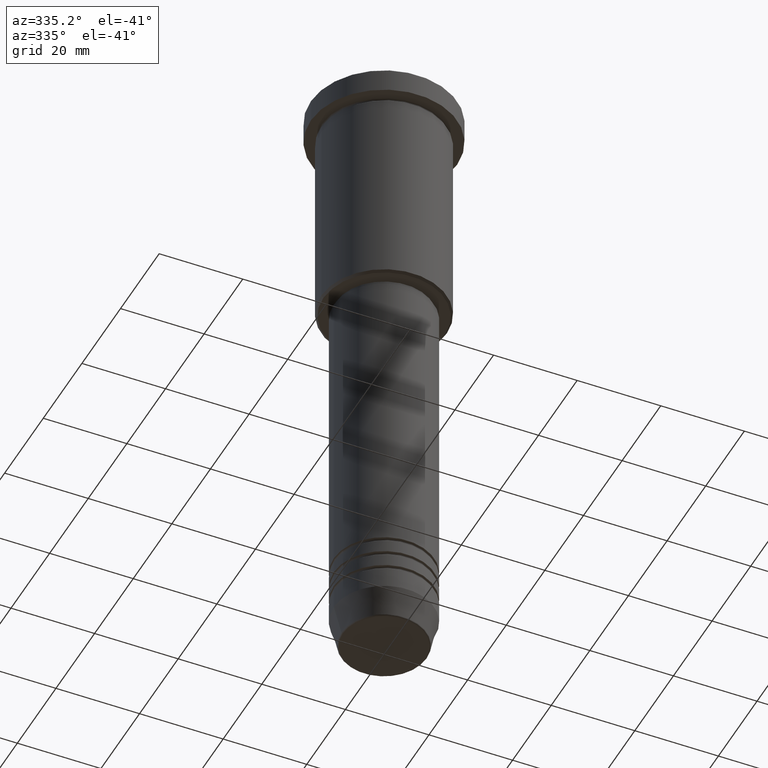
[diagram: clean part render]
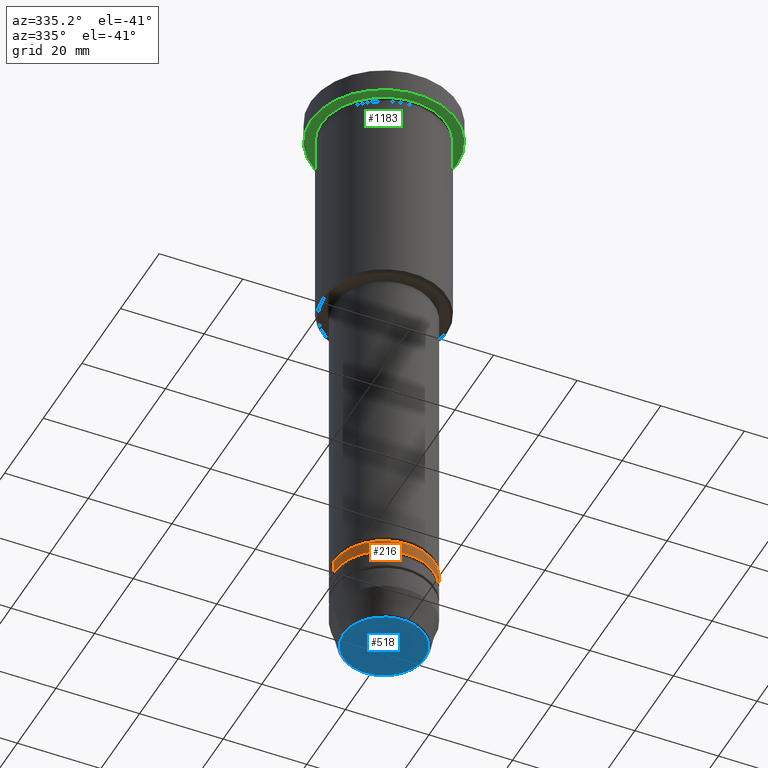
[diagram: same view with three faces highlighted in distinct colors, each labeled with its STEP entity id]
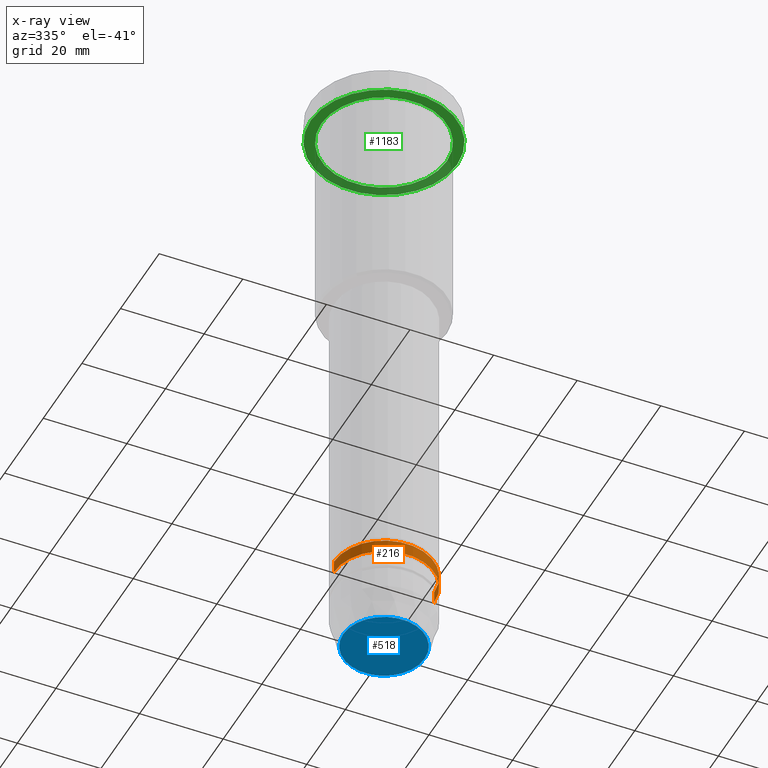
[diagram: x-ray of the same camera — body ghosted, the three highlighted faces saturated]
A machine part, auxiliary view with three faces highlighted in distinct colors.
The next image is the same camera in x-ray (body ghosted, the three faces saturated) — at least one of them is partly hidden behind the body in this view.
Their STEP definitions:

[orange] entity #216 — the highlighted cylindrical surface (partial cylindrical patch) has radius 12 mm, axis along (-0, -0, 1).
#12 = ORIENTED_EDGE ( 'NONE', *, *, #831, .T. ) ;
#15 = ORIENTED_EDGE ( 'NONE', *, *, #799, .T. ) ;
#22 = CYLINDRICAL_SURFACE ( 'NONE', #902, 12.00000000000000178 ) ;
#55 = DIRECTION ( 'NONE',  ( 1.000000000000000000, 0.000000000000000000, 0.000000000000000000 ) ) ;
#65 = CARTESIAN_POINT ( 'NONE',  ( -12.00000000000000533, 1.469576158976824539E-15, -133.9999999999999147 ) ) ;
#101 = CIRCLE ( 'NONE', #767, 12.00000000000000355 ) ;
#124 = CARTESIAN_POINT ( 'NONE',  ( 12.00000000000000000, 0.000000000000000000, -130.9999999999998863 ) ) ;
#216 = ADVANCED_FACE ( 'NONE', ( #772 ), #22, .T. ) ;
#275 = EDGE_CURVE ( 'NONE', #976, #1038, #998, .T. ) ;
#301 = CARTESIAN_POINT ( 'NONE',  ( 0.000000000000000000, 0.000000000000000000, 0.000000000000000000 ) ) ;
#329 = CARTESIAN_POINT ( 'NONE',  ( 0.000000000000000000, 0.000000000000000000, -130.9999999999998863 ) ) ;
#367 = CARTESIAN_POINT ( 'NONE',  ( -12.00000000000000178, 1.469576158976824144E-15, 0.000000000000000000 ) ) ;
#409 = DIRECTION ( 'NONE',  ( 1.000000000000000000, 0.000000000000000000, 0.000000000000000000 ) ) ;
#412 = CARTESIAN_POINT ( 'NONE',  ( 0.000000000000000000, 0.000000000000000000, -133.9999999999999147 ) ) ;
#436 = CARTESIAN_POINT ( 'NONE',  ( 12.00000000000000178, 0.000000000000000000, 0.000000000000000000 ) ) ;
#440 = DIRECTION ( 'NONE',  ( -0.000000000000000000, -0.000000000000000000, 1.000000000000000000 ) ) ;
#449 = LINE ( 'NONE', #367, #1056 ) ;
#473 = ORIENTED_EDGE ( 'NONE', *, *, #956, .F. ) ;
#534 = LINE ( 'NONE', #436, #839 ) ;
#566 = EDGE_LOOP ( 'NONE', ( #473, #15, #12, #892 ) ) ;
#583 = DIRECTION ( 'NONE',  ( -0.000000000000000000, -0.000000000000000000, 1.000000000000000000 ) ) ;
#640 = AXIS2_PLACEMENT_3D ( 'NONE', #329, #1066, #409 ) ;
#716 = DIRECTION ( 'NONE',  ( -0.000000000000000000, -0.000000000000000000, 1.000000000000000000 ) ) ;
#767 = AXIS2_PLACEMENT_3D ( 'NONE', #412, #440, #55 ) ;
#772 = FACE_OUTER_BOUND ( 'NONE', #566, .T. ) ;
#792 = VERTEX_POINT ( 'NONE', #65 ) ;
#799 = EDGE_CURVE ( 'NONE', #792, #1091, #101, .T. ) ;
#831 = EDGE_CURVE ( 'NONE', #1091, #1038, #534, .T. ) ;
#839 = VECTOR ( 'NONE', #716, 1000.000000000000000 ) ;
#892 = ORIENTED_EDGE ( 'NONE', *, *, #275, .F. ) ;
#902 = AXIS2_PLACEMENT_3D ( 'NONE', #301, #583, #950 ) ;
#923 = CARTESIAN_POINT ( 'NONE',  ( 12.00000000000000355, 0.000000000000000000, -133.9999999999999147 ) ) ;
#950 = DIRECTION ( 'NONE',  ( 1.000000000000000000, 0.000000000000000000, 0.000000000000000000 ) ) ;
#956 = EDGE_CURVE ( 'NONE', #792, #976, #449, .T. ) ;
#976 = VERTEX_POINT ( 'NONE', #1092 ) ;
#998 = CIRCLE ( 'NONE', #640, 12.00000000000000000 ) ;
#1038 = VERTEX_POINT ( 'NONE', #124 ) ;
#1056 = VECTOR ( 'NONE', #1103, 1000.000000000000000 ) ;
#1066 = DIRECTION ( 'NONE',  ( -0.000000000000000000, -0.000000000000000000, 1.000000000000000000 ) ) ;
#1091 = VERTEX_POINT ( 'NONE', #923 ) ;
#1092 = CARTESIAN_POINT ( 'NONE',  ( -12.00000000000000000, 1.469576158976824144E-15, -130.9999999999998863 ) ) ;
#1103 = DIRECTION ( 'NONE',  ( -0.000000000000000000, -0.000000000000000000, 1.000000000000000000 ) ) ;

[blue] entity #518 — the highlighted planar face has unit normal (0, -0, 1).
#11 = DIRECTION ( 'NONE',  ( 1.000000000000000000, 0.000000000000000000, 0.000000000000000000 ) ) ;
#16 = AXIS2_PLACEMENT_3D ( 'NONE', #238, #782, #1149 ) ;
#93 = CARTESIAN_POINT ( 'NONE',  ( 9.740692158992658278, 0.000000000000000000, -151.0000000000000284 ) ) ;
#98 = VERTEX_POINT ( 'NONE', #93 ) ;
#103 = ORIENTED_EDGE ( 'NONE', *, *, #1102, .T. ) ;
#238 = CARTESIAN_POINT ( 'NONE',  ( 0.000000000000000000, 0.000000000000000000, -151.0000000000000284 ) ) ;
#293 = CARTESIAN_POINT ( 'NONE',  ( 0.000000000000000000, 0.000000000000000000, -151.0000000000000284 ) ) ;
#334 = ORIENTED_EDGE ( 'NONE', *, *, #877, .T. ) ;
#340 = FACE_OUTER_BOUND ( 'NONE', #728, .T. ) ;
#453 = CARTESIAN_POINT ( 'NONE',  ( -9.740692158992658278, 1.222463696683474999E-15, -151.0000000000000284 ) ) ;
#459 = DIRECTION ( 'NONE',  ( 0.000000000000000000, 0.000000000000000000, -1.000000000000000000 ) ) ;
#463 = AXIS2_PLACEMENT_3D ( 'NONE', #558, #459, #11 ) ;
#472 = CIRCLE ( 'NONE', #774, 9.740692158992658278 ) ;
#518 = ADVANCED_FACE ( 'NONE', ( #340 ), #601, .F. ) ;
#545 = CIRCLE ( 'NONE', #463, 9.740692158992658278 ) ;
#558 = CARTESIAN_POINT ( 'NONE',  ( 0.000000000000000000, 0.000000000000000000, -151.0000000000000284 ) ) ;
#601 = PLANE ( 'NONE',  #16 ) ;
#669 = DIRECTION ( 'NONE',  ( 0.000000000000000000, 0.000000000000000000, -1.000000000000000000 ) ) ;
#728 = EDGE_LOOP ( 'NONE', ( #334, #103 ) ) ;
#774 = AXIS2_PLACEMENT_3D ( 'NONE', #293, #669, #1119 ) ;
#782 = DIRECTION ( 'NONE',  ( 0.000000000000000000, -0.000000000000000000, 1.000000000000000000 ) ) ;
#877 = EDGE_CURVE ( 'NONE', #98, #982, #545, .T. ) ;
#982 = VERTEX_POINT ( 'NONE', #453 ) ;
#1102 = EDGE_CURVE ( 'NONE', #982, #98, #472, .T. ) ;
#1119 = DIRECTION ( 'NONE',  ( 1.000000000000000000, 0.000000000000000000, 0.000000000000000000 ) ) ;
#1149 = DIRECTION ( 'NONE',  ( 1.000000000000000000, 0.000000000000000000, 0.000000000000000000 ) ) ;

[green] entity #1183 — the highlighted planar face has unit normal (0, 0, -1).
#63 = FACE_BOUND ( 'NONE', #946, .T. ) ;
#109 = DIRECTION ( 'NONE',  ( -0.000000000000000000, -0.000000000000000000, 1.000000000000000000 ) ) ;
#157 = CIRCLE ( 'NONE', #620, 15.00000000000000000 ) ;
#165 = DIRECTION ( 'NONE',  ( -1.000000000000000000, 0.000000000000000000, -0.000000000000000000 ) ) ;
#220 = CARTESIAN_POINT ( 'NONE',  ( 0.000000000000000000, 0.000000000000000000, -5.999999999999995559 ) ) ;
#225 = CARTESIAN_POINT ( 'NONE',  ( 17.50000000000000000, 0.000000000000000000, -5.999999999999995559 ) ) ;
#234 = DIRECTION ( 'NONE',  ( -1.000000000000000000, 0.000000000000000000, 0.000000000000000000 ) ) ;
#257 = DIRECTION ( 'NONE',  ( 1.000000000000000000, 0.000000000000000000, 0.000000000000000000 ) ) ;
#271 = EDGE_CURVE ( 'NONE', #507, #478, #933, .T. ) ;
#302 = EDGE_CURVE ( 'NONE', #552, #686, #500, .T. ) ;
#320 = CARTESIAN_POINT ( 'NONE',  ( -17.50000000000000000, 2.143131898507868248E-15, -5.999999999999995559 ) ) ;
#323 = ORIENTED_EDGE ( 'NONE', *, *, #302, .T. ) ;
#324 = AXIS2_PLACEMENT_3D ( 'NONE', #1079, #425, #257 ) ;
#345 = EDGE_CURVE ( 'NONE', #686, #552, #157, .T. ) ;
#416 = PLANE ( 'NONE',  #567 ) ;
#420 = AXIS2_PLACEMENT_3D ( 'NONE', #220, #109, #1053 ) ;
#425 = DIRECTION ( 'NONE',  ( -0.000000000000000000, -0.000000000000000000, 1.000000000000000000 ) ) ;
#442 = CIRCLE ( 'NONE', #420, 17.50000000000000000 ) ;
#475 = ORIENTED_EDGE ( 'NONE', *, *, #345, .T. ) ;
#478 = VERTEX_POINT ( 'NONE', #320 ) ;
#500 = CIRCLE ( 'NONE', #1109, 15.00000000000000000 ) ;
#507 = VERTEX_POINT ( 'NONE', #225 ) ;
#511 = ORIENTED_EDGE ( 'NONE', *, *, #271, .F. ) ;
#515 = FACE_OUTER_BOUND ( 'NONE', #949, .T. ) ;
#537 = DIRECTION ( 'NONE',  ( 0.000000000000000000, 0.000000000000000000, -1.000000000000000000 ) ) ;
#552 = VERTEX_POINT ( 'NONE', #1064 ) ;
#567 = AXIS2_PLACEMENT_3D ( 'NONE', #1154, #537, #165 ) ;
#592 = CARTESIAN_POINT ( 'NONE',  ( 15.00000000000000000, 1.836970198721029589E-15, -5.999999999999994671 ) ) ;
#604 = EDGE_CURVE ( 'NONE', #478, #507, #442, .T. ) ;
#611 = CARTESIAN_POINT ( 'NONE',  ( 0.000000000000000000, 0.000000000000000000, -5.999999999999995559 ) ) ;
#620 = AXIS2_PLACEMENT_3D ( 'NONE', #1072, #635, #234 ) ;
#635 = DIRECTION ( 'NONE',  ( -0.000000000000000000, -0.000000000000000000, 1.000000000000000000 ) ) ;
#686 = VERTEX_POINT ( 'NONE', #592 ) ;
#743 = ORIENTED_EDGE ( 'NONE', *, *, #604, .F. ) ;
#777 = DIRECTION ( 'NONE',  ( -0.000000000000000000, -0.000000000000000000, 1.000000000000000000 ) ) ;
#887 = DIRECTION ( 'NONE',  ( -1.000000000000000000, 0.000000000000000000, 0.000000000000000000 ) ) ;
#933 = CIRCLE ( 'NONE', #324, 17.50000000000000000 ) ;
#946 = EDGE_LOOP ( 'NONE', ( #323, #475 ) ) ;
#949 = EDGE_LOOP ( 'NONE', ( #511, #743 ) ) ;
#1053 = DIRECTION ( 'NONE',  ( 1.000000000000000000, 0.000000000000000000, 0.000000000000000000 ) ) ;
#1064 = CARTESIAN_POINT ( 'NONE',  ( -15.00000000000000000, 0.000000000000000000, -5.999999999999994671 ) ) ;
#1072 = CARTESIAN_POINT ( 'NONE',  ( 0.000000000000000000, 0.000000000000000000, -5.999999999999995559 ) ) ;
#1079 = CARTESIAN_POINT ( 'NONE',  ( 0.000000000000000000, 0.000000000000000000, -5.999999999999995559 ) ) ;
#1109 = AXIS2_PLACEMENT_3D ( 'NONE', #611, #777, #887 ) ;
#1154 = CARTESIAN_POINT ( 'NONE',  ( 0.000000000000000000, 17.50000000000000000, -5.999999999999995559 ) ) ;
#1183 = ADVANCED_FACE ( 'NONE', ( #63, #515 ), #416, .T. ) ;